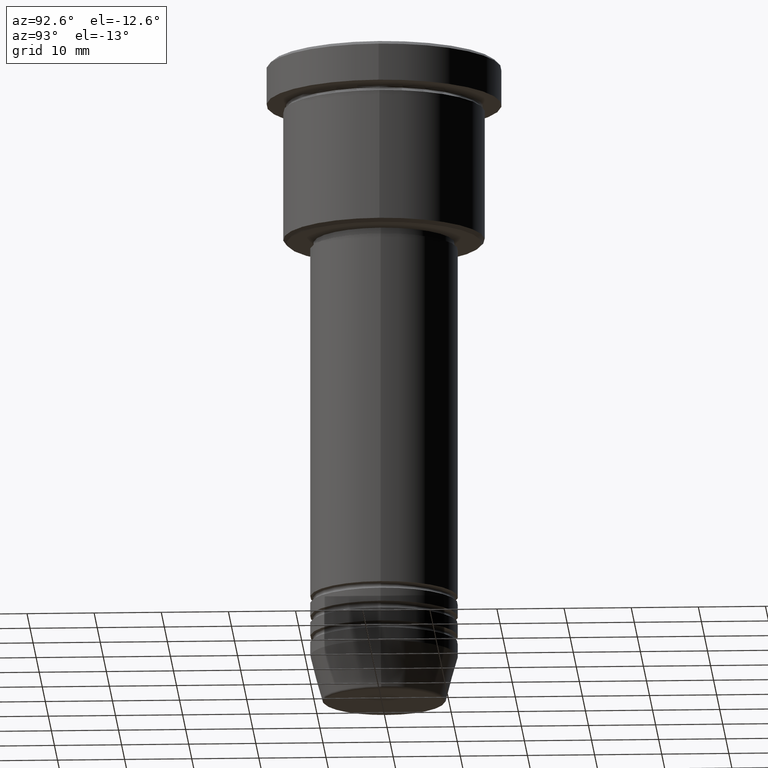
[diagram: clean part render]
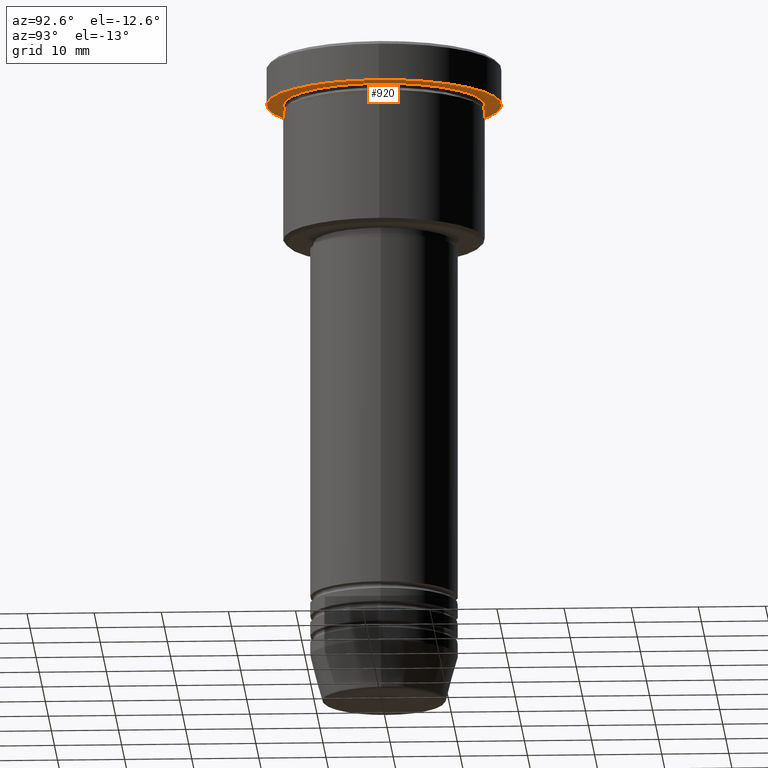
[diagram: same view with one face highlighted and labeled with its STEP entity id]
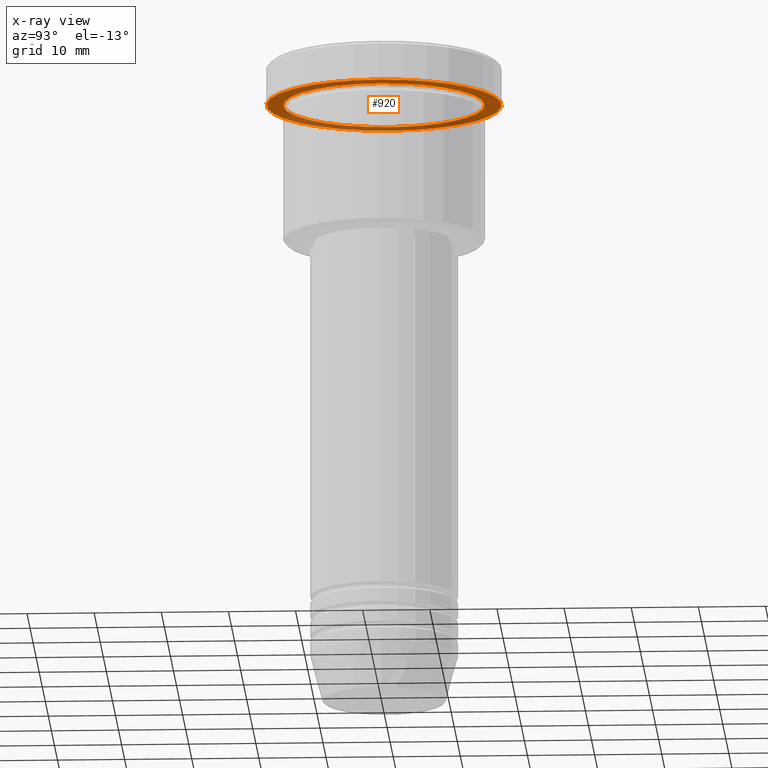
[diagram: x-ray of the same camera — body ghosted, the highlighted face saturated]
A machine part, auxiliary view. The second image highlights one B-rep face of the part: STEP entity #920.
The next image is the same camera in x-ray: the body ghosted, the highlighted face saturated — about 35% of this face is hidden behind the body in this view.
In plain terms, the highlighted planar face has unit normal (0, 0, -1).
Its self-contained STEP definition (entity closure, byte-faithful):
#10 = VERTEX_POINT ( 'NONE', #940 ) ;
#45 = PLANE ( 'NONE',  #1070 ) ;
#120 = EDGE_CURVE ( 'NONE', #349, #228, #344, .T. ) ;
#153 = DIRECTION ( 'NONE',  ( 1.000000000000000000, 0.000000000000000000, 0.000000000000000000 ) ) ;
#175 = VERTEX_POINT ( 'NONE', #382 ) ;
#194 = CIRCLE ( 'NONE', #565, 15.00000000000000000 ) ;
#206 = AXIS2_PLACEMENT_3D ( 'NONE', #806, #900, #153 ) ;
#228 = VERTEX_POINT ( 'NONE', #801 ) ;
#230 = DIRECTION ( 'NONE',  ( 1.000000000000000000, 0.000000000000000000, 0.000000000000000000 ) ) ;
#267 = AXIS2_PLACEMENT_3D ( 'NONE', #456, #274, #1007 ) ;
#274 = DIRECTION ( 'NONE',  ( -0.000000000000000000, -0.000000000000000000, 1.000000000000000000 ) ) ;
#312 = DIRECTION ( 'NONE',  ( -0.000000000000000000, -0.000000000000000000, 1.000000000000000000 ) ) ;
#323 = AXIS2_PLACEMENT_3D ( 'NONE', #1057, #312, #230 ) ;
#344 = CIRCLE ( 'NONE', #267, 15.00000000000000000 ) ;
#349 = VERTEX_POINT ( 'NONE', #1136 ) ;
#382 = CARTESIAN_POINT ( 'NONE',  ( 17.50000000000000000, 0.000000000000000000, -5.999999999999995559 ) ) ;
#456 = CARTESIAN_POINT ( 'NONE',  ( 0.000000000000000000, 0.000000000000000000, -5.999999999999995559 ) ) ;
#482 = CARTESIAN_POINT ( 'NONE',  ( 0.000000000000000000, 0.000000000000000000, -5.999999999999995559 ) ) ;
#492 = EDGE_CURVE ( 'NONE', #228, #349, #194, .T. ) ;
#503 = FACE_OUTER_BOUND ( 'NONE', #989, .T. ) ;
#545 = EDGE_LOOP ( 'NONE', ( #894, #717 ) ) ;
#565 = AXIS2_PLACEMENT_3D ( 'NONE', #482, #671, #767 ) ;
#612 = CARTESIAN_POINT ( 'NONE',  ( 0.000000000000000000, 17.50000000000000000, -5.999999999999995559 ) ) ;
#659 = EDGE_CURVE ( 'NONE', #10, #175, #1030, .T. ) ;
#671 = DIRECTION ( 'NONE',  ( -0.000000000000000000, -0.000000000000000000, 1.000000000000000000 ) ) ;
#717 = ORIENTED_EDGE ( 'NONE', *, *, #120, .T. ) ;
#767 = DIRECTION ( 'NONE',  ( -1.000000000000000000, 0.000000000000000000, 0.000000000000000000 ) ) ;
#801 = CARTESIAN_POINT ( 'NONE',  ( -15.00000000000000000, 0.000000000000000000, -5.999999999999994671 ) ) ;
#806 = CARTESIAN_POINT ( 'NONE',  ( 0.000000000000000000, 0.000000000000000000, -5.999999999999995559 ) ) ;
#840 = DIRECTION ( 'NONE',  ( 0.000000000000000000, 0.000000000000000000, -1.000000000000000000 ) ) ;
#848 = DIRECTION ( 'NONE',  ( -1.000000000000000000, 0.000000000000000000, -0.000000000000000000 ) ) ;
#875 = FACE_BOUND ( 'NONE', #545, .T. ) ;
#894 = ORIENTED_EDGE ( 'NONE', *, *, #492, .T. ) ;
#900 = DIRECTION ( 'NONE',  ( -0.000000000000000000, -0.000000000000000000, 1.000000000000000000 ) ) ;
#920 = ADVANCED_FACE ( 'NONE', ( #875, #503 ), #45, .T. ) ;
#940 = CARTESIAN_POINT ( 'NONE',  ( -17.50000000000000000, 2.143131898507868248E-15, -5.999999999999995559 ) ) ;
#962 = EDGE_CURVE ( 'NONE', #175, #10, #1179, .T. ) ;
#989 = EDGE_LOOP ( 'NONE', ( #1147, #1083 ) ) ;
#1007 = DIRECTION ( 'NONE',  ( -1.000000000000000000, 0.000000000000000000, 0.000000000000000000 ) ) ;
#1030 = CIRCLE ( 'NONE', #323, 17.50000000000000000 ) ;
#1057 = CARTESIAN_POINT ( 'NONE',  ( 0.000000000000000000, 0.000000000000000000, -5.999999999999995559 ) ) ;
#1070 = AXIS2_PLACEMENT_3D ( 'NONE', #612, #840, #848 ) ;
#1083 = ORIENTED_EDGE ( 'NONE', *, *, #659, .F. ) ;
#1136 = CARTESIAN_POINT ( 'NONE',  ( 15.00000000000000000, 1.836970198721029589E-15, -5.999999999999994671 ) ) ;
#1147 = ORIENTED_EDGE ( 'NONE', *, *, #962, .F. ) ;
#1179 = CIRCLE ( 'NONE', #206, 17.50000000000000000 ) ;